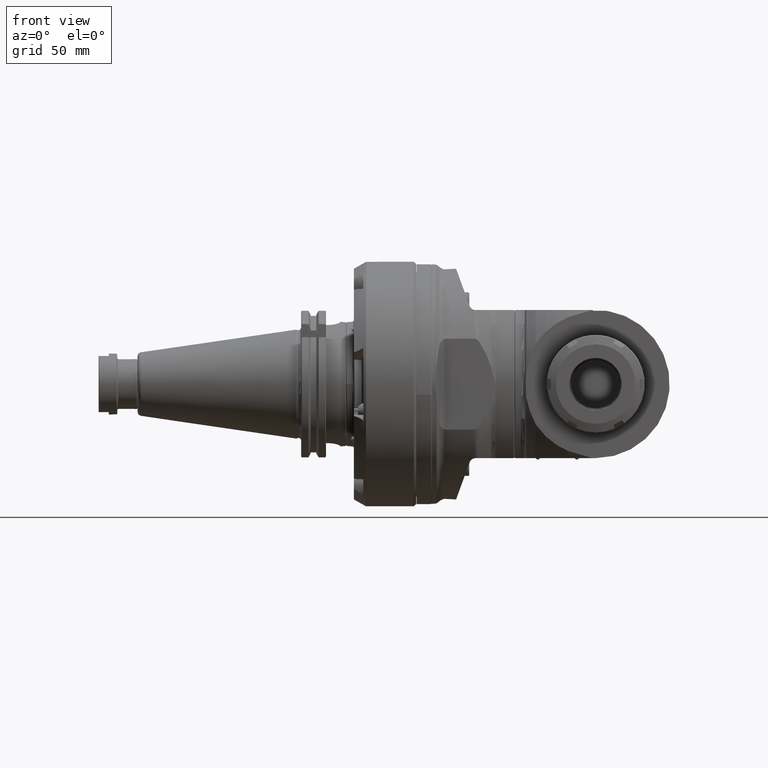
[diagram: clean part render]
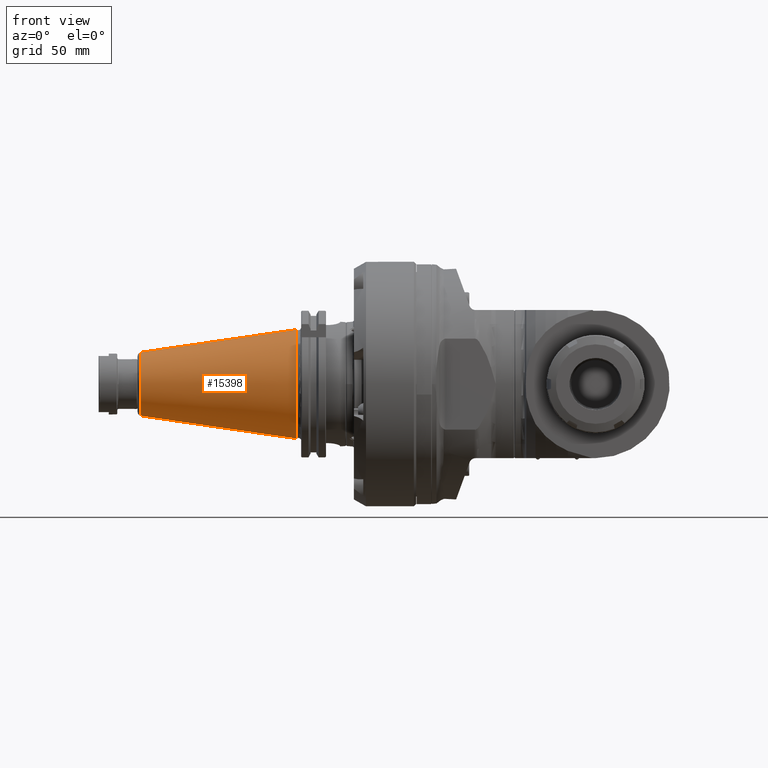
[diagram: same view with one face highlighted and labeled with its STEP entity id]
A machine part, front view. The second image highlights one B-rep face of the part: STEP entity #15398.
In plain terms, the highlighted conical surface has half-angle 8.297 deg.
Its self-contained STEP definition (entity closure, byte-faithful):
#359=CONICAL_SURFACE('',#16639,1.08904406759567,0.144812411498922);
#1538=FACE_OUTER_BOUND('',#2425,.T.);
#2425=EDGE_LOOP('',(#11720,#11721,#11722,#11723,#11724,#11725));
#3456=LINE('',#36881,#4611);
#4611=VECTOR('',#19283,1.08904406759567);
#5690=CIRCLE('',#16637,1.375);
#5691=CIRCLE('',#16638,1.375);
#5692=CIRCLE('',#16640,0.803088135191338);
#5693=CIRCLE('',#16641,0.803088135191338);
#6641=VERTEX_POINT('',#36874);
#6642=VERTEX_POINT('',#36875);
#6643=VERTEX_POINT('',#36880);
#6644=VERTEX_POINT('',#36882);
#8542=EDGE_CURVE('',#6641,#6642,#5690,.T.);
#8544=EDGE_CURVE('',#6642,#6641,#5691,.T.);
#8545=EDGE_CURVE('',#6641,#6643,#3456,.T.);
#8546=EDGE_CURVE('',#6644,#6643,#5692,.T.);
#8547=EDGE_CURVE('',#6643,#6644,#5693,.T.);
#11720=ORIENTED_EDGE('',*,*,#8542,.F.);
#11721=ORIENTED_EDGE('',*,*,#8545,.T.);
#11722=ORIENTED_EDGE('',*,*,#8546,.F.);
#11723=ORIENTED_EDGE('',*,*,#8547,.F.);
#11724=ORIENTED_EDGE('',*,*,#8545,.F.);
#11725=ORIENTED_EDGE('',*,*,#8544,.F.);
#15398=ADVANCED_FACE('',(#1538),#359,.T.);
#16637=AXIS2_PLACEMENT_3D('',#36876,#19276,#19277);
#16638=AXIS2_PLACEMENT_3D('',#36878,#19279,#19280);
#16639=AXIS2_PLACEMENT_3D('',#36879,#19281,#19282);
#16640=AXIS2_PLACEMENT_3D('',#36883,#19284,#19285);
#16641=AXIS2_PLACEMENT_3D('',#36884,#19286,#19287);
#19276=DIRECTION('center_axis',(1.,0.,0.));
#19277=DIRECTION('ref_axis',(0.,0.,-1.));
#19279=DIRECTION('center_axis',(1.,0.,0.));
#19280=DIRECTION('ref_axis',(0.,0.,-1.));
#19281=DIRECTION('center_axis',(1.,0.,0.));
#19282=DIRECTION('ref_axis',(0.,0.,-1.));
#19283=DIRECTION('',(-0.98953299358046,1.76724869581176E-17,-0.144306807239621));
#19284=DIRECTION('center_axis',(-1.,0.,0.));
#19285=DIRECTION('ref_axis',(0.,1.,0.));
#19286=DIRECTION('center_axis',(-1.,0.,0.));
#19287=DIRECTION('ref_axis',(0.,1.,0.));
#36874=CARTESIAN_POINT('',(3.91637728371693E-15,0.,1.375));
#36875=CARTESIAN_POINT('',(1.57163215075505E-14,-1.68388934882767E-16,-1.37500000000005));
#36876=CARTESIAN_POINT('Origin',(3.35689481461457E-15,0.,0.));
#36878=CARTESIAN_POINT('Origin',(3.35689481461457E-15,0.,0.));
#36879=CARTESIAN_POINT('Origin',(-1.96084187043504,0.,0.));
#36880=CARTESIAN_POINT('',(-3.92168374087006,-9.83499314195171E-17,0.803088135191242));
#36881=CARTESIAN_POINT('',(-1.96084187043504,-1.33369433151145E-16,1.08904406759567));
#36882=CARTESIAN_POINT('',(-3.92168374087008,0.803088135191338,0.));
#36883=CARTESIAN_POINT('Origin',(-3.92168374087008,0.,0.));
#36884=CARTESIAN_POINT('Origin',(-3.92168374087008,0.,0.));